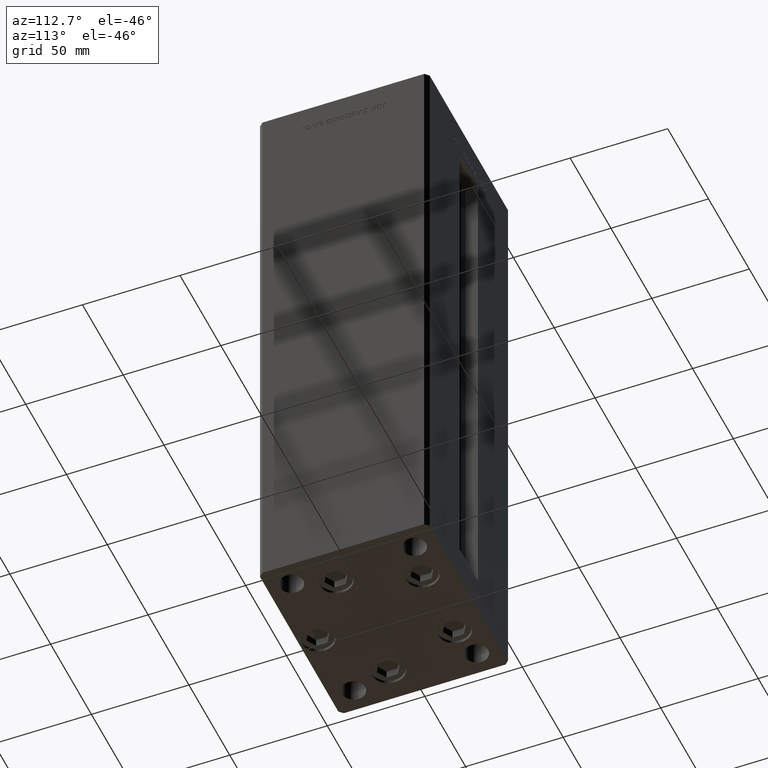
[diagram: clean part render]
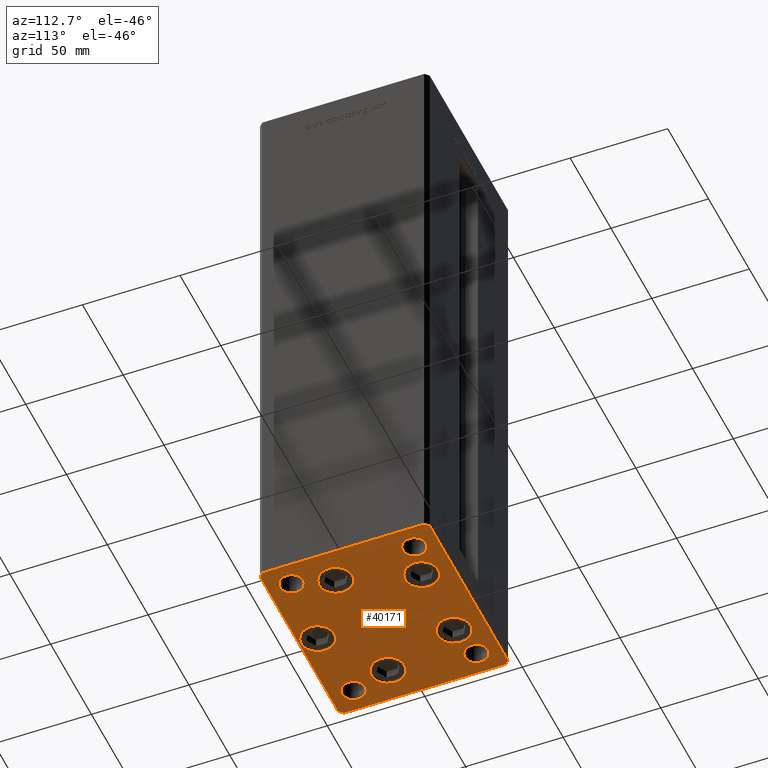
[diagram: same view with one face highlighted and labeled with its STEP entity id]
A machine part, auxiliary view. The second image highlights one B-rep face of the part: STEP entity #40171.
In plain terms, the highlighted planar face has unit normal (0, 0, -1).
Its self-contained STEP definition (entity closure, byte-faithful):
#80 = CIRCLE ( 'NONE', #31285, 8.500000000000000000 ) ;
#798 = CARTESIAN_POINT ( 'NONE',  ( 44.00000000000000000, -31.49999999999999289, 0.000000000000000000 ) ) ;
#857 = DIRECTION ( 'NONE',  ( 0.000000000000000000, -0.000000000000000000, -1.000000000000000000 ) ) ;
#897 = EDGE_CURVE ( 'NONE', #50325, #14977, #40554, .T. ) ;
#1028 = DIRECTION ( 'NONE',  ( 0.000000000000000000, -0.000000000000000000, -1.000000000000000000 ) ) ;
#1118 = DIRECTION ( 'NONE',  ( 1.000000000000000000, 0.000000000000000000, 0.000000000000000000 ) ) ;
#1288 = CARTESIAN_POINT ( 'NONE',  ( -32.05550741379015278, -11.33333333333333925, 0.000000000000000000 ) ) ;
#1423 = VERTEX_POINT ( 'NONE', #8751 ) ;
#1554 = CIRCLE ( 'NONE', #15044, 6.000000000000005329 ) ;
#1565 = EDGE_CURVE ( 'NONE', #32188, #31669, #46492, .T. ) ;
#2381 = DIRECTION ( 'NONE',  ( 1.000000000000000000, 0.000000000000000000, 0.000000000000000000 ) ) ;
#2741 = CARTESIAN_POINT ( 'NONE',  ( -11.32068048781373726, 27.62499999999999645, 0.000000000000000000 ) ) ;
#3248 = CARTESIAN_POINT ( 'NONE',  ( -50.00000000000000000, -41.50000000000000000, 0.000000000000000000 ) ) ;
#3335 = FACE_BOUND ( 'NONE', #43554, .T. ) ;
#3474 = CARTESIAN_POINT ( 'NONE',  ( -47.99999999999999289, -43.50000000000001421, 0.000000000000000000 ) ) ;
#3600 = DIRECTION ( 'NONE',  ( 1.000000000000000000, 0.000000000000000000, 0.000000000000000000 ) ) ;
#3767 = VERTEX_POINT ( 'NONE', #47627 ) ;
#3864 = FACE_BOUND ( 'NONE', #49975, .T. ) ;
#3903 = EDGE_CURVE ( 'NONE', #31669, #32188, #11984, .T. ) ;
#4124 = FACE_BOUND ( 'NONE', #40236, .T. ) ;
#4174 = LINE ( 'NONE', #49010, #15228 ) ;
#4322 = ORIENTED_EDGE ( 'NONE', *, *, #20734, .T. ) ;
#4614 = DIRECTION ( 'NONE',  ( 0.000000000000000000, -0.000000000000000000, -1.000000000000000000 ) ) ;
#4685 = VERTEX_POINT ( 'NONE', #8836 ) ;
#4793 = CIRCLE ( 'NONE', #37672, 8.499999999999992895 ) ;
#4856 = DIRECTION ( 'NONE',  ( 1.000000000000000000, 0.000000000000000000, 0.000000000000000000 ) ) ;
#5048 = ORIENTED_EDGE ( 'NONE', *, *, #44026, .T. ) ;
#5722 = ORIENTED_EDGE ( 'NONE', *, *, #35233, .T. ) ;
#5840 = ORIENTED_EDGE ( 'NONE', *, *, #25805, .T. ) ;
#6298 = DIRECTION ( 'NONE',  ( -0.000000000000000000, 0.000000000000000000, 1.000000000000000000 ) ) ;
#6301 = VERTEX_POINT ( 'NONE', #9025 ) ;
#6322 = EDGE_CURVE ( 'NONE', #3767, #15917, #7868, .T. ) ;
#6531 = ORIENTED_EDGE ( 'NONE', *, *, #30038, .T. ) ;
#6702 = ORIENTED_EDGE ( 'NONE', *, *, #9547, .T. ) ;
#6730 = CARTESIAN_POINT ( 'NONE',  ( 47.99999999999990763, 43.50000000000000000, 0.000000000000000000 ) ) ;
#7042 = DIRECTION ( 'NONE',  ( 0.000000000000000000, -0.000000000000000000, -1.000000000000000000 ) ) ;
#7084 = VERTEX_POINT ( 'NONE', #3248 ) ;
#7097 = ORIENTED_EDGE ( 'NONE', *, *, #40306, .T. ) ;
#7343 = CARTESIAN_POINT ( 'NONE',  ( 8.500000000000003553, -34.00000000000000000, 0.000000000000000000 ) ) ;
#7536 = CARTESIAN_POINT ( 'NONE',  ( 40.55550741379014568, -11.33333333333332860, 0.000000000000000000 ) ) ;
#7581 = AXIS2_PLACEMENT_3D ( 'NONE', #9546, #30130, #38300 ) ;
#7868 = CIRCLE ( 'NONE', #45736, 5.999999999999998224 ) ;
#8266 = AXIS2_PLACEMENT_3D ( 'NONE', #45466, #44958, #4856 ) ;
#8451 = VECTOR ( 'NONE', #13408, 1000.000000000000000 ) ;
#8715 = VERTEX_POINT ( 'NONE', #40072 ) ;
#8751 = CARTESIAN_POINT ( 'NONE',  ( 44.00000000000000000, 31.49999999999999289, 0.000000000000000000 ) ) ;
#8836 = CARTESIAN_POINT ( 'NONE',  ( 32.00000000000000000, 31.49999999999999289, 0.000000000000000000 ) ) ;
#9025 = CARTESIAN_POINT ( 'NONE',  ( -50.00000000000000711, 41.49999999999995026, 0.000000000000000000 ) ) ;
#9186 = CARTESIAN_POINT ( 'NONE',  ( 49.99999999999992184, 41.49999999999998579, 0.000000000000000000 ) ) ;
#9266 = DIRECTION ( 'NONE',  ( 0.000000000000000000, -0.000000000000000000, -1.000000000000000000 ) ) ;
#9546 = CARTESIAN_POINT ( 'NONE',  ( 4.163799117101000559E-15, -34.00000000000000000, 0.000000000000000000 ) ) ;
#9547 = EDGE_CURVE ( 'NONE', #14428, #25122, #21407, .T. ) ;
#9709 = CARTESIAN_POINT ( 'NONE',  ( 50.00000000000000000, -41.49999999999999289, 0.000000000000000000 ) ) ;
#9793 = ORIENTED_EDGE ( 'NONE', *, *, #897, .T. ) ;
#9887 = CIRCLE ( 'NONE', #46100, 8.499999999999992895 ) ;
#10106 = AXIS2_PLACEMENT_3D ( 'NONE', #32653, #40049, #52158 ) ;
#10642 = CIRCLE ( 'NONE', #39268, 6.000000000000005329 ) ;
#11017 = CARTESIAN_POINT ( 'NONE',  ( -37.99999999999999289, -31.50000000000000000, 0.000000000000000000 ) ) ;
#11797 = FACE_BOUND ( 'NONE', #30630, .T. ) ;
#11984 = CIRCLE ( 'NONE', #17873, 8.500000000000000000 ) ;
#12059 = DIRECTION ( 'NONE',  ( -0.000000000000000000, 0.000000000000000000, 1.000000000000000000 ) ) ;
#12637 = EDGE_CURVE ( 'NONE', #4685, #1423, #45893, .T. ) ;
#12773 = CARTESIAN_POINT ( 'NONE',  ( -19.82068048781373903, 27.62499999999999645, 0.000000000000000000 ) ) ;
#12774 = AXIS2_PLACEMENT_3D ( 'NONE', #18471, #30619, #31404 ) ;
#13058 = DIRECTION ( 'NONE',  ( 1.000000000000000000, 0.000000000000000000, 0.000000000000000000 ) ) ;
#13408 = DIRECTION ( 'NONE',  ( -1.003213576468515193E-15, 1.000000000000000000, 0.000000000000000000 ) ) ;
#13484 = EDGE_CURVE ( 'NONE', #31816, #38956, #26167, .T. ) ;
#13983 = VERTEX_POINT ( 'NONE', #28009 ) ;
#14428 = VERTEX_POINT ( 'NONE', #2741 ) ;
#14977 = VERTEX_POINT ( 'NONE', #798 ) ;
#15044 = AXIS2_PLACEMENT_3D ( 'NONE', #37211, #29298, #40658 ) ;
#15228 = VECTOR ( 'NONE', #32152, 1000.000000000000000 ) ;
#15770 = DIRECTION ( 'NONE',  ( -0.000000000000000000, 0.000000000000000000, 1.000000000000000000 ) ) ;
#15917 = VERTEX_POINT ( 'NONE', #31399 ) ;
#16454 = CARTESIAN_POINT ( 'NONE',  ( 47.99999999999999289, -43.50000000000001421, 0.000000000000000000 ) ) ;
#16687 = DIRECTION ( 'NONE',  ( 1.000000000000000000, 0.000000000000000000, 0.000000000000000000 ) ) ;
#16752 = ORIENTED_EDGE ( 'NONE', *, *, #40898, .T. ) ;
#16840 = AXIS2_PLACEMENT_3D ( 'NONE', #37051, #4614, #13058 ) ;
#16971 = DIRECTION ( 'NONE',  ( 0.000000000000000000, -0.000000000000000000, -1.000000000000000000 ) ) ;
#17026 = CARTESIAN_POINT ( 'NONE',  ( -44.00000000000000000, -31.50000000000000000, 0.000000000000000000 ) ) ;
#17195 = DIRECTION ( 'NONE',  ( 1.000000000000000000, 0.000000000000000000, 0.000000000000000000 ) ) ;
#17383 = DIRECTION ( 'NONE',  ( 1.000000000000000000, 0.000000000000000000, 0.000000000000000000 ) ) ;
#17436 = CARTESIAN_POINT ( 'NONE',  ( 19.82068048781373193, 27.62500000000000000, 0.000000000000000000 ) ) ;
#17873 = AXIS2_PLACEMENT_3D ( 'NONE', #48664, #28633, #32063 ) ;
#18251 = CARTESIAN_POINT ( 'NONE',  ( -47.99999999999999289, -43.50000000000001421, 0.000000000000000000 ) ) ;
#18347 = LINE ( 'NONE', #6730, #35192 ) ;
#18471 = CARTESIAN_POINT ( 'NONE',  ( 38.00000000000000000, -31.49999999999999289, 0.000000000000000000 ) ) ;
#19168 = FACE_OUTER_BOUND ( 'NONE', #42250, .T. ) ;
#19431 = FACE_BOUND ( 'NONE', #40754, .T. ) ;
#19479 = CARTESIAN_POINT ( 'NONE',  ( -38.00000000000000000, 31.50000000000000000, 0.000000000000000000 ) ) ;
#19863 = CARTESIAN_POINT ( 'NONE',  ( 38.00000000000000000, 31.49999999999999289, 0.000000000000000000 ) ) ;
#20372 = ORIENTED_EDGE ( 'NONE', *, *, #12637, .F. ) ;
#20405 = LINE ( 'NONE', #16454, #31131 ) ;
#20734 = EDGE_CURVE ( 'NONE', #30699, #8715, #10642, .T. ) ;
#21065 = CARTESIAN_POINT ( 'NONE',  ( -50.00000000000000000, -41.50000000000000000, 0.000000000000000000 ) ) ;
#21407 = CIRCLE ( 'NONE', #45820, 8.500000000000000000 ) ;
#21464 = ORIENTED_EDGE ( 'NONE', *, *, #43565, .T. ) ;
#22298 = DIRECTION ( 'NONE',  ( 0.000000000000000000, -0.000000000000000000, -1.000000000000000000 ) ) ;
#22474 = EDGE_CURVE ( 'NONE', #34564, #47091, #4793, .T. ) ;
#22654 = VERTEX_POINT ( 'NONE', #27467 ) ;
#22853 = VERTEX_POINT ( 'NONE', #7343 ) ;
#23134 = FACE_BOUND ( 'NONE', #32256, .T. ) ;
#23138 = DIRECTION ( 'NONE',  ( 1.000000000000000000, 0.000000000000000000, 0.000000000000000000 ) ) ;
#23182 = DIRECTION ( 'NONE',  ( 1.000000000000000000, 0.000000000000000000, 0.000000000000000000 ) ) ;
#23208 = CARTESIAN_POINT ( 'NONE',  ( 11.32068048781373015, 27.62500000000000000, 0.000000000000000000 ) ) ;
#23216 = CARTESIAN_POINT ( 'NONE',  ( -28.32068048781373903, 27.62499999999999645, 0.000000000000000000 ) ) ;
#23672 = EDGE_CURVE ( 'NONE', #15917, #3767, #24189, .T. ) ;
#23916 = FACE_BOUND ( 'NONE', #29405, .T. ) ;
#24189 = CIRCLE ( 'NONE', #26758, 5.999999999999998224 ) ;
#24418 = AXIS2_PLACEMENT_3D ( 'NONE', #12773, #16971, #32816 ) ;
#24451 = CARTESIAN_POINT ( 'NONE',  ( 38.00000000000000000, 31.49999999999999289, 0.000000000000000000 ) ) ;
#24797 = EDGE_CURVE ( 'NONE', #47091, #34564, #9887, .T. ) ;
#24950 = ORIENTED_EDGE ( 'NONE', *, *, #33558, .F. ) ;
#25005 = LINE ( 'NONE', #9709, #8451 ) ;
#25122 = VERTEX_POINT ( 'NONE', #23216 ) ;
#25253 = EDGE_CURVE ( 'NONE', #7084, #31816, #29001, .T. ) ;
#25360 = CARTESIAN_POINT ( 'NONE',  ( 32.05550741379015278, -11.33333333333333037, 0.000000000000000000 ) ) ;
#25403 = CARTESIAN_POINT ( 'NONE',  ( -8.499999999999996447, -34.00000000000000000, 0.000000000000000000 ) ) ;
#25701 = EDGE_CURVE ( 'NONE', #28162, #22654, #18347, .T. ) ;
#25805 = EDGE_CURVE ( 'NONE', #46552, #13983, #38579, .T. ) ;
#25997 = ORIENTED_EDGE ( 'NONE', *, *, #44390, .T. ) ;
#26167 = LINE ( 'NONE', #18251, #39200 ) ;
#26758 = AXIS2_PLACEMENT_3D ( 'NONE', #19479, #43234, #23182 ) ;
#26980 = CIRCLE ( 'NONE', #7581, 8.500000000000000000 ) ;
#27373 = AXIS2_PLACEMENT_3D ( 'NONE', #19863, #28058, #16687 ) ;
#27467 = CARTESIAN_POINT ( 'NONE',  ( -48.00000000000000711, 43.49999999999996447, 0.000000000000000000 ) ) ;
#27487 = EDGE_LOOP ( 'NONE', ( #40662, #44012 ) ) ;
#27522 = VERTEX_POINT ( 'NONE', #25403 ) ;
#28009 = CARTESIAN_POINT ( 'NONE',  ( -40.55550741379015278, -11.33333333333333925, 0.000000000000000000 ) ) ;
#28058 = DIRECTION ( 'NONE',  ( -0.000000000000000000, 0.000000000000000000, 1.000000000000000000 ) ) ;
#28088 = ORIENTED_EDGE ( 'NONE', *, *, #25701, .T. ) ;
#28162 = VERTEX_POINT ( 'NONE', #46244 ) ;
#28604 = ORIENTED_EDGE ( 'NONE', *, *, #22474, .T. ) ;
#28633 = DIRECTION ( 'NONE',  ( 0.000000000000000000, -0.000000000000000000, -1.000000000000000000 ) ) ;
#29001 = LINE ( 'NONE', #21065, #48668 ) ;
#29298 = DIRECTION ( 'NONE',  ( 0.000000000000000000, -0.000000000000000000, -1.000000000000000000 ) ) ;
#29405 = EDGE_LOOP ( 'NONE', ( #7097, #6702 ) ) ;
#29913 = ORIENTED_EDGE ( 'NONE', *, *, #40956, .T. ) ;
#30038 = EDGE_CURVE ( 'NONE', #38956, #51190, #20405, .T. ) ;
#30130 = DIRECTION ( 'NONE',  ( 0.000000000000000000, -0.000000000000000000, -1.000000000000000000 ) ) ;
#30235 = ORIENTED_EDGE ( 'NONE', *, *, #24797, .T. ) ;
#30619 = DIRECTION ( 'NONE',  ( 0.000000000000000000, -0.000000000000000000, -1.000000000000000000 ) ) ;
#30630 = EDGE_LOOP ( 'NONE', ( #24950, #20372 ) ) ;
#30699 = VERTEX_POINT ( 'NONE', #17026 ) ;
#30837 = CARTESIAN_POINT ( 'NONE',  ( 23.55550741379015633, -11.33333333333333037, 0.000000000000000000 ) ) ;
#31131 = VECTOR ( 'NONE', #48104, 1000.000000000000000 ) ;
#31285 = AXIS2_PLACEMENT_3D ( 'NONE', #1288, #1028, #17383 ) ;
#31399 = CARTESIAN_POINT ( 'NONE',  ( -44.00000000000000000, 31.50000000000000000, 0.000000000000000000 ) ) ;
#31404 = DIRECTION ( 'NONE',  ( 1.000000000000000000, 0.000000000000000000, 0.000000000000000000 ) ) ;
#31669 = VERTEX_POINT ( 'NONE', #33074 ) ;
#31816 = VERTEX_POINT ( 'NONE', #3474 ) ;
#31926 = CARTESIAN_POINT ( 'NONE',  ( 32.00000000000000000, -31.49999999999999289, 0.000000000000000000 ) ) ;
#32063 = DIRECTION ( 'NONE',  ( 1.000000000000000000, 0.000000000000000000, 0.000000000000000000 ) ) ;
#32152 = DIRECTION ( 'NONE',  ( -0.7071067811865463515, -0.7071067811865487940, 0.000000000000000000 ) ) ;
#32188 = VERTEX_POINT ( 'NONE', #23208 ) ;
#32256 = EDGE_LOOP ( 'NONE', ( #5722, #4322 ) ) ;
#32653 = CARTESIAN_POINT ( 'NONE',  ( 4.163799117101000559E-15, -34.00000000000000000, 0.000000000000000000 ) ) ;
#32816 = DIRECTION ( 'NONE',  ( 1.000000000000000000, 0.000000000000000000, 0.000000000000000000 ) ) ;
#32869 = CIRCLE ( 'NONE', #10106, 8.500000000000000000 ) ;
#33074 = CARTESIAN_POINT ( 'NONE',  ( 28.32068048781373193, 27.62500000000000000, 0.000000000000000000 ) ) ;
#33558 = EDGE_CURVE ( 'NONE', #1423, #4685, #36120, .T. ) ;
#34058 = CARTESIAN_POINT ( 'NONE',  ( 47.99999999999999289, -43.50000000000001421, 0.000000000000000000 ) ) ;
#34349 = DIRECTION ( 'NONE',  ( 1.000000000000000000, 0.000000000000000000, 0.000000000000000000 ) ) ;
#34564 = VERTEX_POINT ( 'NONE', #7536 ) ;
#35192 = VECTOR ( 'NONE', #50517, 1000.000000000000000 ) ;
#35233 = EDGE_CURVE ( 'NONE', #8715, #30699, #1554, .T. ) ;
#35497 = ORIENTED_EDGE ( 'NONE', *, *, #13484, .T. ) ;
#35530 = PLANE ( 'NONE',  #44642 ) ;
#36120 = CIRCLE ( 'NONE', #51251, 5.999999999999998224 ) ;
#36311 = CARTESIAN_POINT ( 'NONE',  ( 0.000000000000000000, 0.000000000000000000, 0.000000000000000000 ) ) ;
#37051 = CARTESIAN_POINT ( 'NONE',  ( 38.00000000000000000, -31.49999999999999289, 0.000000000000000000 ) ) ;
#37211 = CARTESIAN_POINT ( 'NONE',  ( -37.99999999999999289, -31.50000000000000000, 0.000000000000000000 ) ) ;
#37615 = DIRECTION ( 'NONE',  ( 1.000000000000000000, 0.000000000000000000, 0.000000000000000000 ) ) ;
#37672 = AXIS2_PLACEMENT_3D ( 'NONE', #25360, #48860, #45677 ) ;
#37676 = LINE ( 'NONE', #9186, #48897 ) ;
#37942 = DIRECTION ( 'NONE',  ( 0.7071067811865474617, -0.7071067811865474617, 0.000000000000000000 ) ) ;
#38300 = DIRECTION ( 'NONE',  ( 1.000000000000000000, 0.000000000000000000, 0.000000000000000000 ) ) ;
#38579 = CIRCLE ( 'NONE', #8266, 8.500000000000000000 ) ;
#38900 = AXIS2_PLACEMENT_3D ( 'NONE', #17436, #9266, #2381 ) ;
#38956 = VERTEX_POINT ( 'NONE', #34058 ) ;
#39140 = ORIENTED_EDGE ( 'NONE', *, *, #45827, .T. ) ;
#39200 = VECTOR ( 'NONE', #34349, 1000.000000000000000 ) ;
#39268 = AXIS2_PLACEMENT_3D ( 'NONE', #11017, #7042, #23138 ) ;
#39772 = ORIENTED_EDGE ( 'NONE', *, *, #46943, .T. ) ;
#40016 = FACE_BOUND ( 'NONE', #27487, .T. ) ;
#40049 = DIRECTION ( 'NONE',  ( 0.000000000000000000, -0.000000000000000000, -1.000000000000000000 ) ) ;
#40072 = CARTESIAN_POINT ( 'NONE',  ( -31.99999999999998579, -31.50000000000000000, 0.000000000000000000 ) ) ;
#40171 = ADVANCED_FACE ( 'NONE', ( #23916, #40016, #47920, #3335, #19431, #11797, #4124, #3864, #19168, #23134 ), #35530, .T. ) ;
#40202 = CARTESIAN_POINT ( 'NONE',  ( -19.82068048781373903, 27.62499999999999645, 0.000000000000000000 ) ) ;
#40236 = EDGE_LOOP ( 'NONE', ( #5048, #9793 ) ) ;
#40306 = EDGE_CURVE ( 'NONE', #25122, #14428, #47157, .T. ) ;
#40554 = CIRCLE ( 'NONE', #12774, 5.999999999999998224 ) ;
#40658 = DIRECTION ( 'NONE',  ( 1.000000000000000000, 0.000000000000000000, 0.000000000000000000 ) ) ;
#40662 = ORIENTED_EDGE ( 'NONE', *, *, #1565, .T. ) ;
#40754 = EDGE_LOOP ( 'NONE', ( #39772, #5840 ) ) ;
#40898 = EDGE_CURVE ( 'NONE', #41084, #28162, #37676, .T. ) ;
#40906 = ORIENTED_EDGE ( 'NONE', *, *, #45113, .T. ) ;
#40956 = EDGE_CURVE ( 'NONE', #51190, #41084, #25005, .T. ) ;
#41084 = VERTEX_POINT ( 'NONE', #42409 ) ;
#41718 = CARTESIAN_POINT ( 'NONE',  ( -23.55550741379015278, -11.33333333333333748, 0.000000000000000000 ) ) ;
#42250 = EDGE_LOOP ( 'NONE', ( #43292, #35497, #6531, #29913, #16752, #28088, #39140, #40906 ) ) ;
#42409 = CARTESIAN_POINT ( 'NONE',  ( 49.99999999999992184, 41.49999999999998579, 0.000000000000000000 ) ) ;
#43234 = DIRECTION ( 'NONE',  ( -0.000000000000000000, 0.000000000000000000, 1.000000000000000000 ) ) ;
#43292 = ORIENTED_EDGE ( 'NONE', *, *, #25253, .T. ) ;
#43400 = ORIENTED_EDGE ( 'NONE', *, *, #23672, .F. ) ;
#43554 = EDGE_LOOP ( 'NONE', ( #21464, #25997 ) ) ;
#43565 = EDGE_CURVE ( 'NONE', #27522, #22853, #32869, .T. ) ;
#44012 = ORIENTED_EDGE ( 'NONE', *, *, #3903, .T. ) ;
#44026 = EDGE_CURVE ( 'NONE', #14977, #50325, #44674, .T. ) ;
#44138 = DIRECTION ( 'NONE',  ( 8.360113137237628665E-17, -1.000000000000000000, 0.000000000000000000 ) ) ;
#44390 = EDGE_CURVE ( 'NONE', #22853, #27522, #26980, .T. ) ;
#44642 = AXIS2_PLACEMENT_3D ( 'NONE', #36311, #12059, #3600 ) ;
#44674 = CIRCLE ( 'NONE', #16840, 5.999999999999998224 ) ;
#44905 = CARTESIAN_POINT ( 'NONE',  ( -38.00000000000000000, 31.50000000000000000, 0.000000000000000000 ) ) ;
#44958 = DIRECTION ( 'NONE',  ( 0.000000000000000000, -0.000000000000000000, -1.000000000000000000 ) ) ;
#45113 = EDGE_CURVE ( 'NONE', #6301, #7084, #51523, .T. ) ;
#45466 = CARTESIAN_POINT ( 'NONE',  ( -32.05550741379015278, -11.33333333333333925, 0.000000000000000000 ) ) ;
#45495 = VECTOR ( 'NONE', #44138, 1000.000000000000000 ) ;
#45677 = DIRECTION ( 'NONE',  ( 1.000000000000000000, 0.000000000000000000, 0.000000000000000000 ) ) ;
#45736 = AXIS2_PLACEMENT_3D ( 'NONE', #44905, #6298, #17195 ) ;
#45820 = AXIS2_PLACEMENT_3D ( 'NONE', #40202, #857, #1118 ) ;
#45827 = EDGE_CURVE ( 'NONE', #22654, #6301, #4174, .T. ) ;
#45893 = CIRCLE ( 'NONE', #27373, 5.999999999999998224 ) ;
#46044 = CARTESIAN_POINT ( 'NONE',  ( 32.05550741379015278, -11.33333333333333037, 0.000000000000000000 ) ) ;
#46100 = AXIS2_PLACEMENT_3D ( 'NONE', #46044, #22298, #37615 ) ;
#46103 = DIRECTION ( 'NONE',  ( -0.7071067811865474617, 0.7071067811865474617, 0.000000000000000000 ) ) ;
#46244 = CARTESIAN_POINT ( 'NONE',  ( 47.99999999999990763, 43.50000000000000000, 0.000000000000000000 ) ) ;
#46492 = CIRCLE ( 'NONE', #38900, 8.500000000000000000 ) ;
#46552 = VERTEX_POINT ( 'NONE', #41718 ) ;
#46908 = ORIENTED_EDGE ( 'NONE', *, *, #6322, .F. ) ;
#46943 = EDGE_CURVE ( 'NONE', #13983, #46552, #80, .T. ) ;
#47091 = VERTEX_POINT ( 'NONE', #30837 ) ;
#47157 = CIRCLE ( 'NONE', #24418, 8.500000000000000000 ) ;
#47627 = CARTESIAN_POINT ( 'NONE',  ( -32.00000000000000000, 31.50000000000000000, 0.000000000000000000 ) ) ;
#47920 = FACE_BOUND ( 'NONE', #49371, .T. ) ;
#48104 = DIRECTION ( 'NONE',  ( 0.7071067811865463515, 0.7071067811865487940, 0.000000000000000000 ) ) ;
#48664 = CARTESIAN_POINT ( 'NONE',  ( 19.82068048781373193, 27.62500000000000000, 0.000000000000000000 ) ) ;
#48668 = VECTOR ( 'NONE', #37942, 1000.000000000000114 ) ;
#48860 = DIRECTION ( 'NONE',  ( 0.000000000000000000, -0.000000000000000000, -1.000000000000000000 ) ) ;
#48897 = VECTOR ( 'NONE', #46103, 1000.000000000000114 ) ;
#49010 = CARTESIAN_POINT ( 'NONE',  ( -48.00000000000000711, 43.49999999999996447, 0.000000000000000000 ) ) ;
#49371 = EDGE_LOOP ( 'NONE', ( #30235, #28604 ) ) ;
#49975 = EDGE_LOOP ( 'NONE', ( #46908, #43400 ) ) ;
#50078 = CARTESIAN_POINT ( 'NONE',  ( 50.00000000000000000, -41.49999999999999289, 0.000000000000000000 ) ) ;
#50325 = VERTEX_POINT ( 'NONE', #31926 ) ;
#50517 = DIRECTION ( 'NONE',  ( -1.000000000000000000, -3.614007241618350743E-16, 0.000000000000000000 ) ) ;
#51190 = VERTEX_POINT ( 'NONE', #50078 ) ;
#51251 = AXIS2_PLACEMENT_3D ( 'NONE', #24451, #15770, #51892 ) ;
#51523 = LINE ( 'NONE', #51785, #45495 ) ;
#51785 = CARTESIAN_POINT ( 'NONE',  ( -50.00000000000000711, 41.49999999999995026, 0.000000000000000000 ) ) ;
#51892 = DIRECTION ( 'NONE',  ( 1.000000000000000000, 0.000000000000000000, 0.000000000000000000 ) ) ;
#52158 = DIRECTION ( 'NONE',  ( 1.000000000000000000, 0.000000000000000000, 0.000000000000000000 ) ) ;